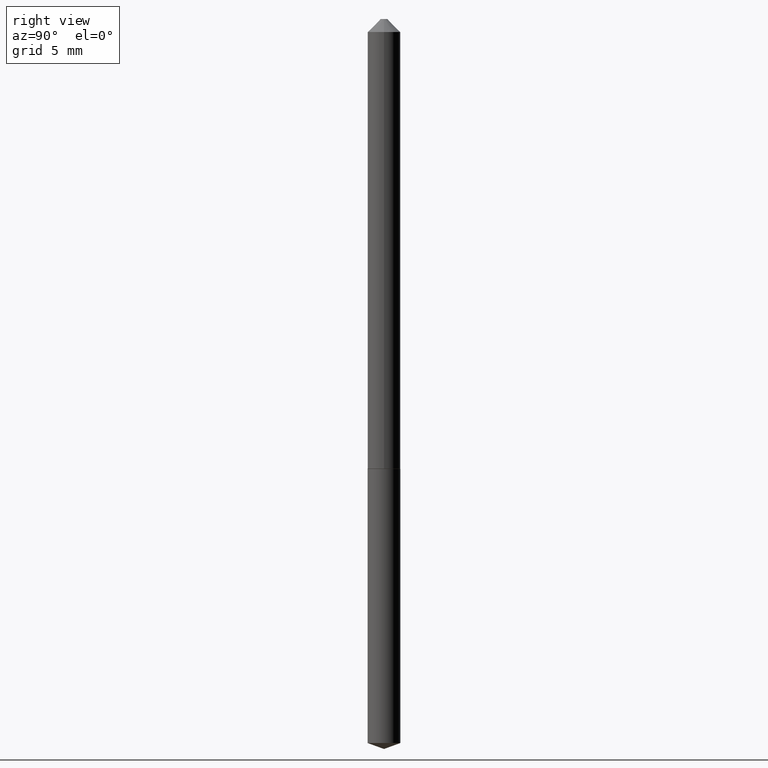
[diagram: clean part render]
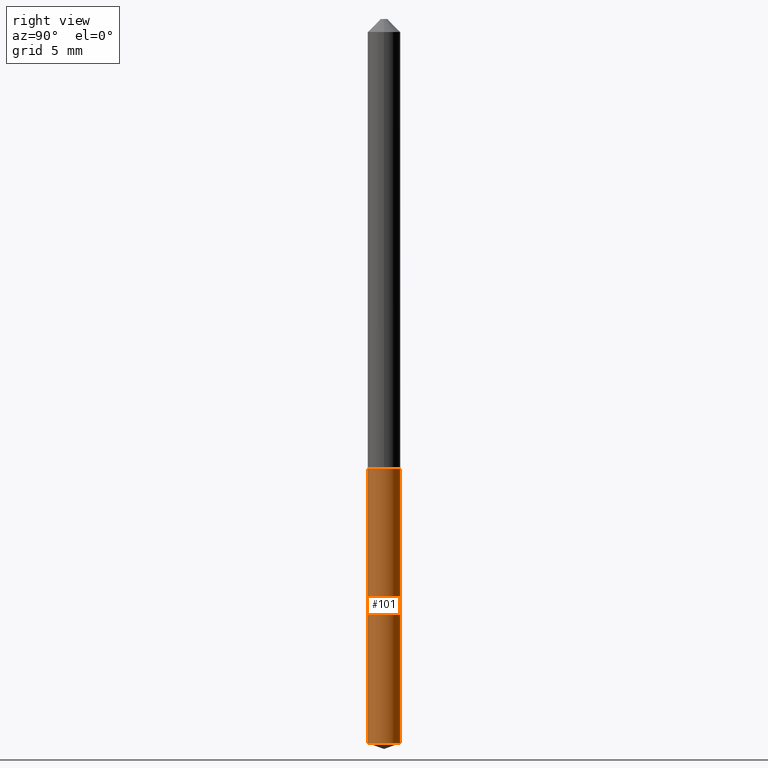
[diagram: same view with one face highlighted and labeled with its STEP entity id]
A machine part, right view. The second image highlights one B-rep face of the part: STEP entity #101.
In plain terms, the highlighted cylindrical surface (edge-blend (fillet) strip) has radius 0.997 mm, axis along (-0, 0, 1).
Its self-contained STEP definition (entity closure, byte-faithful):
#2 = DIRECTION ( 'NONE',  ( -2.445472830054324931E-29, 3.491475576433443584E-15, 1.000000000000000000 ) ) ;
#3 = AXIS2_PLACEMENT_3D ( 'NONE', #187, #189, #62 ) ;
#19 = DIRECTION ( 'NONE',  ( -2.445472830054324931E-29, 3.491475576433443584E-15, 1.000000000000000000 ) ) ;
#20 = LINE ( 'NONE', #149, #75 ) ;
#22 = ORIENTED_EDGE ( 'NONE', *, *, #326, .F. ) ;
#23 = CARTESIAN_POINT ( 'NONE',  ( 2.637438107470669995E-29, -3.765562623942332293E-15, -1.078500000000000014 ) ) ;
#27 = DIRECTION ( 'NONE',  ( -6.982962677686264344E-15, -1.000000000000000000, 3.480061138425812861E-15 ) ) ;
#28 = VERTEX_POINT ( 'NONE', #40 ) ;
#40 = CARTESIAN_POINT ( 'NONE',  ( 2.788880237858818240E-16, 0.03924999999999394251, -1.735714168305051652 ) ) ;
#62 = DIRECTION ( 'NONE',  ( -6.982962677686264344E-15, -1.000000000000000000, 6.960122276851625723E-15 ) ) ;
#69 = CARTESIAN_POINT ( 'NONE',  ( 2.637438107470669995E-29, -3.765562623942332293E-15, -1.078500000000000014 ) ) ;
#75 = VECTOR ( 'NONE', #351, 39.37007874015748143 ) ;
#95 = ORIENTED_EDGE ( 'NONE', *, *, #357, .T. ) ;
#101 = ADVANCED_FACE ( 'NONE', ( #310 ), #276, .T. ) ;
#103 = CIRCLE ( 'NONE', #174, 0.03925000000000000017 ) ;
#123 = VERTEX_POINT ( 'NONE', #317 ) ;
#149 = CARTESIAN_POINT ( 'NONE',  ( 2.788880237858656524E-16, 0.03924999999999623235, -1.078500000000000014 ) ) ;
#151 = CIRCLE ( 'NONE', #3, 0.03925000000000000017 ) ;
#174 = AXIS2_PLACEMENT_3D ( 'NONE', #23, #2, #27 ) ;
#182 = CARTESIAN_POINT ( 'NONE',  ( -2.740812850991435691E-16, -0.03925000000000607864, -1.735714168305051430 ) ) ;
#187 = CARTESIAN_POINT ( 'NONE',  ( 4.244637499587423972E-29, -6.060209841065438643E-15, -1.735714168305051652 ) ) ;
#189 = DIRECTION ( 'NONE',  ( -2.445472830054324931E-29, 3.491475576433443584E-15, 1.000000000000000000 ) ) ;
#207 = EDGE_CURVE ( 'NONE', #28, #350, #20, .T. ) ;
#208 = ORIENTED_EDGE ( 'NONE', *, *, #242, .F. ) ;
#210 = VERTEX_POINT ( 'NONE', #182 ) ;
#213 = CARTESIAN_POINT ( 'NONE',  ( -2.740812850991594942E-16, -0.03925000000000376105, -1.078499999999999792 ) ) ;
#230 = DIRECTION ( 'NONE',  ( -6.982962677686264344E-15, -1.000000000000000000, 3.480061138425812861E-15 ) ) ;
#242 = EDGE_CURVE ( 'NONE', #123, #350, #103, .T. ) ;
#261 = LINE ( 'NONE', #213, #347 ) ;
#276 = CYLINDRICAL_SURFACE ( 'NONE', #385, 0.03925000000000000017 ) ;
#298 = EDGE_LOOP ( 'NONE', ( #95, #327, #208, #22 ) ) ;
#310 = FACE_OUTER_BOUND ( 'NONE', #298, .T. ) ;
#317 = CARTESIAN_POINT ( 'NONE',  ( -2.740812850991594942E-16, -0.03925000000000376105, -1.078499999999999792 ) ) ;
#325 = CARTESIAN_POINT ( 'NONE',  ( 2.788880237858818240E-16, 0.03924999999999623235, -1.078500000000000014 ) ) ;
#326 = EDGE_CURVE ( 'NONE', #210, #123, #261, .T. ) ;
#327 = ORIENTED_EDGE ( 'NONE', *, *, #207, .T. ) ;
#331 = DIRECTION ( 'NONE',  ( -2.445472830054324931E-29, 3.491475576433443584E-15, 1.000000000000000000 ) ) ;
#347 = VECTOR ( 'NONE', #331, 39.37007874015748143 ) ;
#350 = VERTEX_POINT ( 'NONE', #325 ) ;
#351 = DIRECTION ( 'NONE',  ( -2.445472830054324931E-29, 3.491475576433443584E-15, 1.000000000000000000 ) ) ;
#357 = EDGE_CURVE ( 'NONE', #210, #28, #151, .T. ) ;
#385 = AXIS2_PLACEMENT_3D ( 'NONE', #69, #19, #230 ) ;